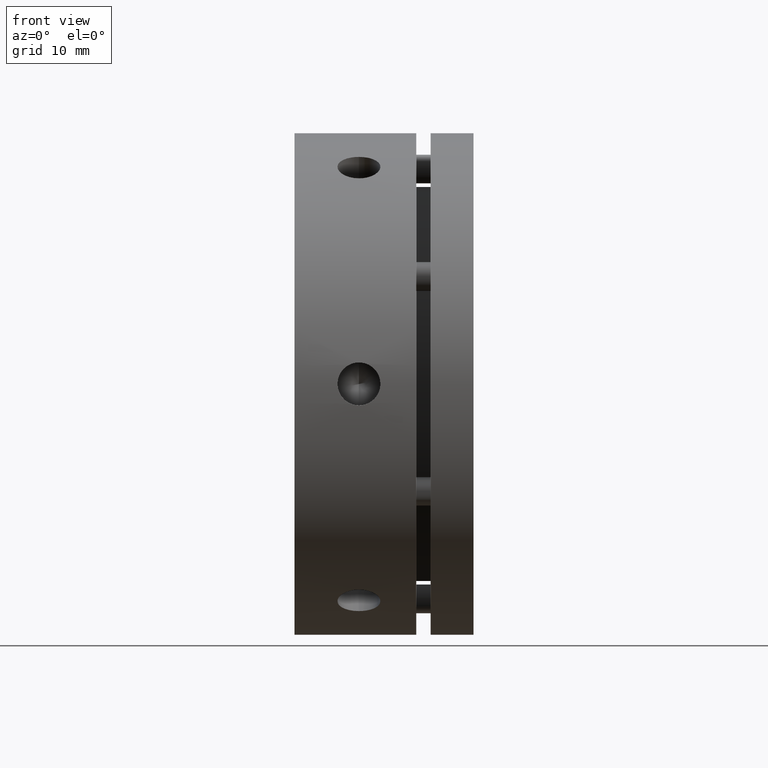
[diagram: clean part render]
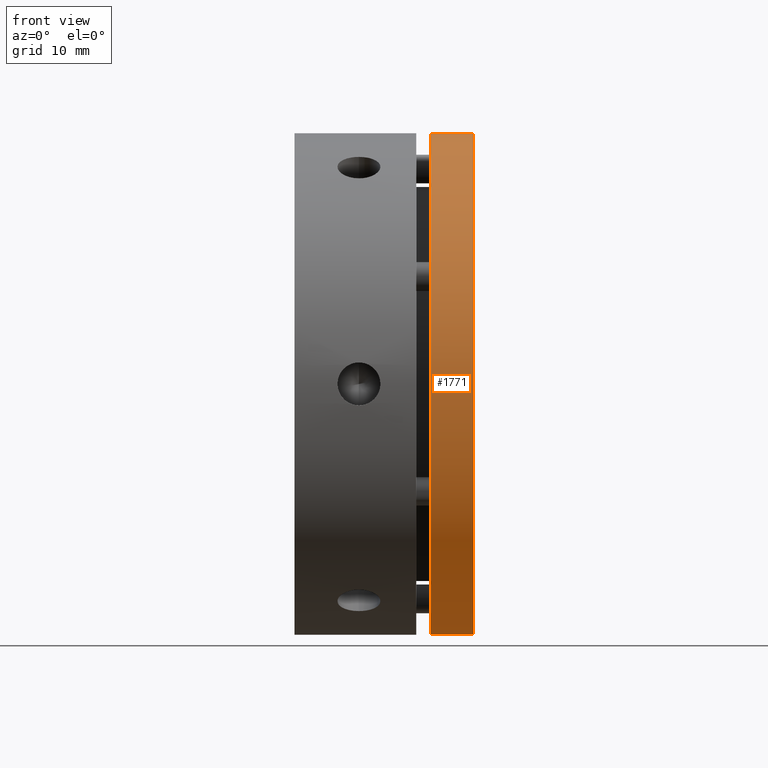
[diagram: same view with one face highlighted and labeled with its STEP entity id]
A machine part, front view. The second image highlights one B-rep face of the part: STEP entity #1771.
In plain terms, the highlighted cylindrical surface (partial cylindrical patch) has radius 35 mm, axis along (1, 0, 0).
Its self-contained STEP definition (entity closure, byte-faithful):
#67 = AXIS2_PLACEMENT_3D ( 'NONE', #3213, #3214, #3215 ) ;
#69 = AXIS2_PLACEMENT_3D ( 'NONE', #3221, #3222, #3223 ) ;
#127 = AXIS2_PLACEMENT_3D ( 'NONE', #3398, #3396, #3390 ) ;
#305 = EDGE_LOOP ( 'NONE', ( #1107, #1108, #1109, #1110 ) ) ;
#570 = EDGE_CURVE ( 'NONE', #793, #800, #840, .T. ) ;
#573 = EDGE_CURVE ( 'NONE', #796, #799, #843, .T. ) ;
#793 = VERTEX_POINT ( 'NONE', #1942 ) ;
#796 = VERTEX_POINT ( 'NONE', #1945 ) ;
#799 = VERTEX_POINT ( 'NONE', #1948 ) ;
#800 = VERTEX_POINT ( 'NONE', #1949 ) ;
#840 = LINE ( 'NONE', #1523, #842 ) ;
#842 = VECTOR ( 'NONE', #1527, 1000.000000000000000 ) ;
#843 = LINE ( 'NONE', #1534, #846 ) ;
#846 = VECTOR ( 'NONE', #1529, 1000.000000000000000 ) ;
#1107 = ORIENTED_EDGE ( 'NONE', *, *, #573, .F. ) ;
#1108 = ORIENTED_EDGE ( 'NONE', *, *, #1713, .T. ) ;
#1109 = ORIENTED_EDGE ( 'NONE', *, *, #570, .T. ) ;
#1110 = ORIENTED_EDGE ( 'NONE', *, *, #1715, .T. ) ;
#1523 = CARTESIAN_POINT ( 'NONE',  ( 12.49999999999999300, 0.0000000000000000000, -35.00000000000000000 ) ) ;
#1527 = DIRECTION ( 'NONE',  ( 1.000000000000000000, 0.0000000000000000000, 0.0000000000000000000 ) ) ;
#1529 = DIRECTION ( 'NONE',  ( 1.000000000000000000, 0.0000000000000000000, 0.0000000000000000000 ) ) ;
#1534 = CARTESIAN_POINT ( 'NONE',  ( 12.49999999999999300, 4.286263797015736500E-015, 35.00000000000000000 ) ) ;
#1713 = EDGE_CURVE ( 'NONE', #796, #793, #2543, .T. ) ;
#1715 = EDGE_CURVE ( 'NONE', #800, #799, #2550, .T. ) ;
#1771 = ADVANCED_FACE ( 'NONE', ( #2680 ), #2684, .T. ) ;
#1942 = CARTESIAN_POINT ( 'NONE',  ( 18.99999999999999600, 0.0000000000000000000, -35.00000000000000000 ) ) ;
#1945 = CARTESIAN_POINT ( 'NONE',  ( 18.99999999999999600, 4.286263797015736500E-015, 35.00000000000000000 ) ) ;
#1948 = CARTESIAN_POINT ( 'NONE',  ( 24.99999999999999300, 4.286263797015736500E-015, 35.00000000000000000 ) ) ;
#1949 = CARTESIAN_POINT ( 'NONE',  ( 24.99999999999999300, 0.0000000000000000000, -35.00000000000000000 ) ) ;
#2543 = CIRCLE ( 'NONE', #67, 35.00000000000000000 ) ;
#2550 = CIRCLE ( 'NONE', #69, 35.00000000000000000 ) ;
#2680 = FACE_OUTER_BOUND ( 'NONE', #305, .T. ) ;
#2684 = CYLINDRICAL_SURFACE ( 'NONE', #127, 35.00000000000000000 ) ;
#3213 = CARTESIAN_POINT ( 'NONE',  ( 18.99999999999999600, 0.0000000000000000000, 0.0000000000000000000 ) ) ;
#3214 = DIRECTION ( 'NONE',  ( 1.000000000000000000, 0.0000000000000000000, 0.0000000000000000000 ) ) ;
#3215 = DIRECTION ( 'NONE',  ( 0.0000000000000000000, 0.0000000000000000000, -1.000000000000000000 ) ) ;
#3221 = CARTESIAN_POINT ( 'NONE',  ( 24.99999999999999300, 0.0000000000000000000, 0.0000000000000000000 ) ) ;
#3222 = DIRECTION ( 'NONE',  ( -1.000000000000000000, -0.0000000000000000000, -0.0000000000000000000 ) ) ;
#3223 = DIRECTION ( 'NONE',  ( 0.0000000000000000000, 0.0000000000000000000, -1.000000000000000000 ) ) ;
#3390 = DIRECTION ( 'NONE',  ( 0.0000000000000000000, 0.0000000000000000000, -1.000000000000000000 ) ) ;
#3396 = DIRECTION ( 'NONE',  ( 1.000000000000000000, 0.0000000000000000000, 0.0000000000000000000 ) ) ;
#3398 = CARTESIAN_POINT ( 'NONE',  ( 12.49999999999999300, 0.0000000000000000000, 0.0000000000000000000 ) ) ;